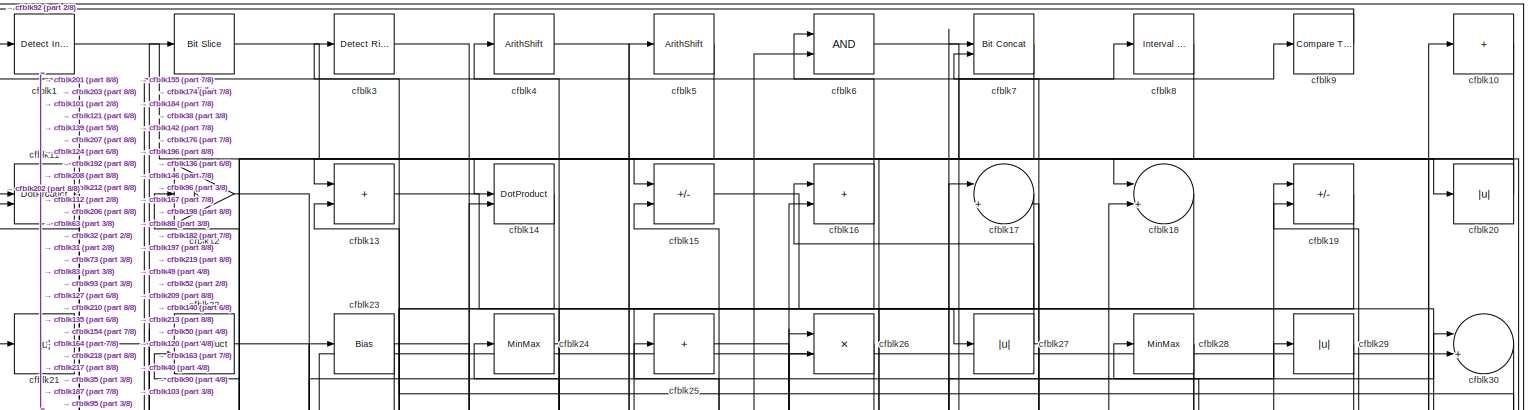
[diagram: root canvas - part 1/8, full width, top band]
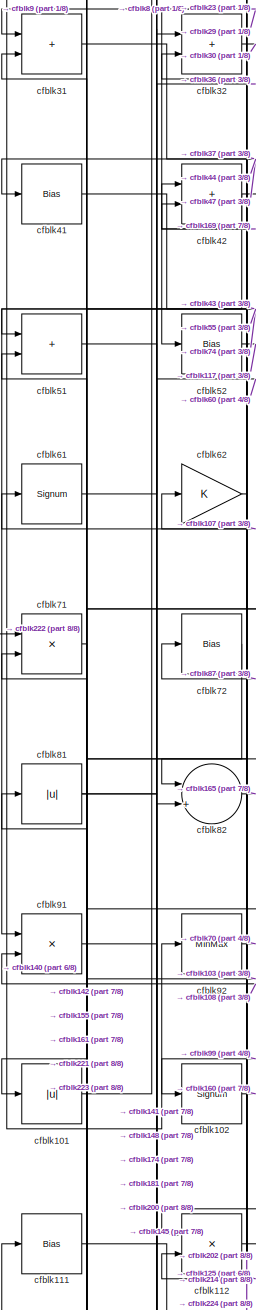
[diagram: root canvas - part 2/8, top left region]
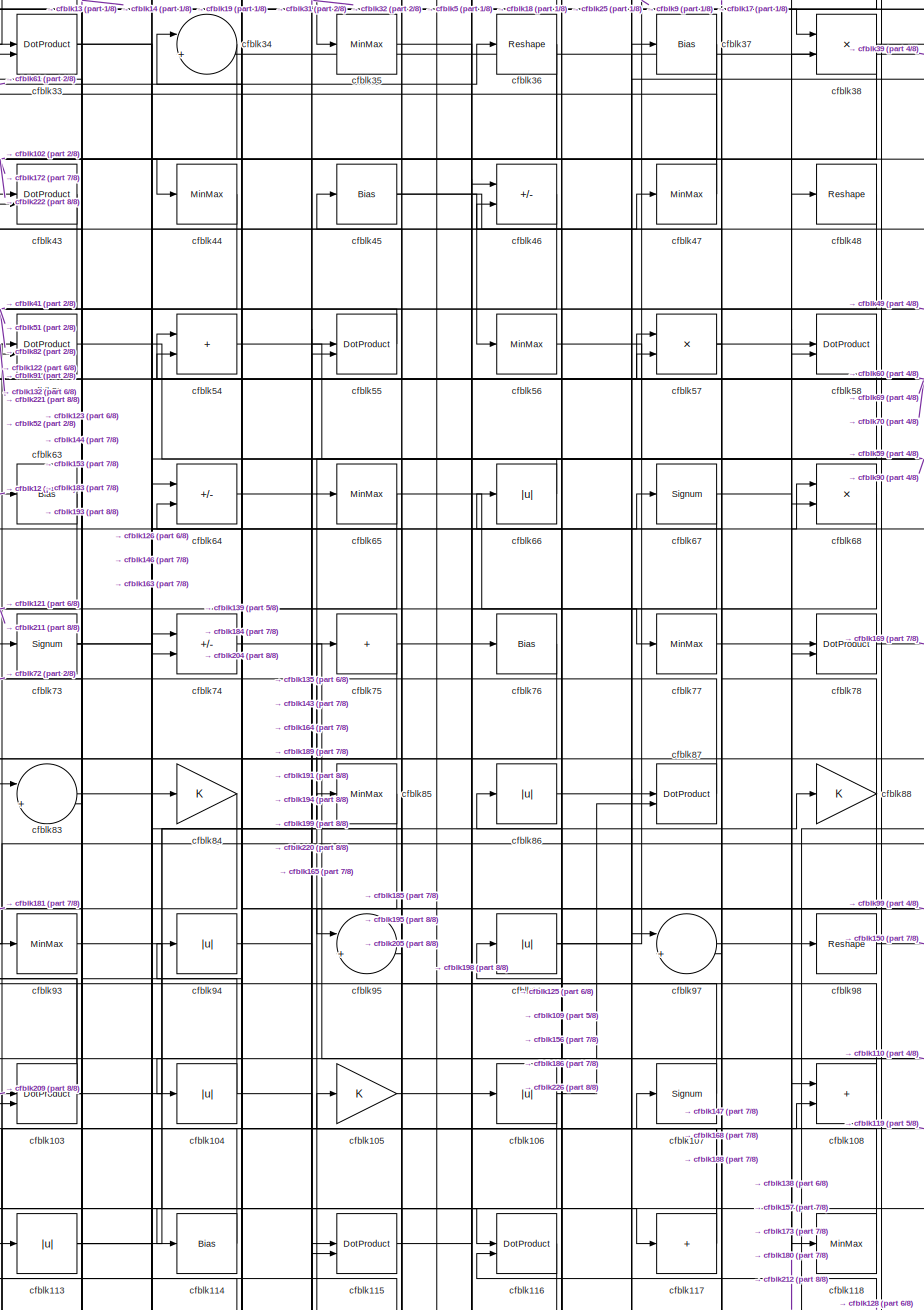
[diagram: root canvas - part 3/8, top center region]
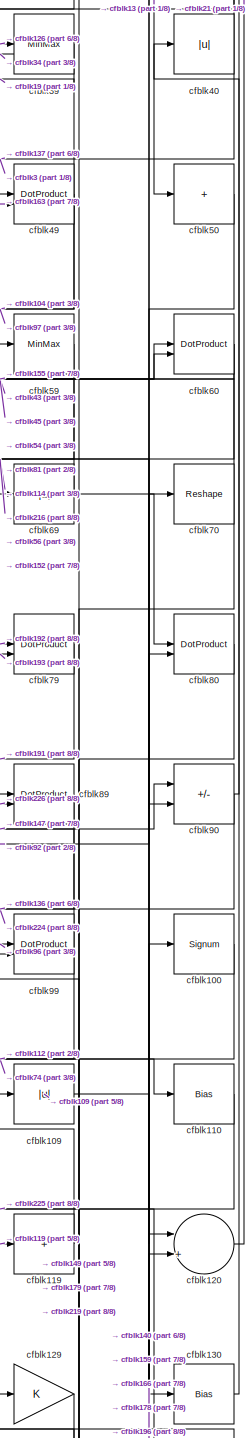
[diagram: root canvas - part 4/8, middle right region]
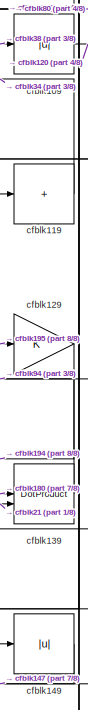
[diagram: root canvas - part 5/8, middle right region]
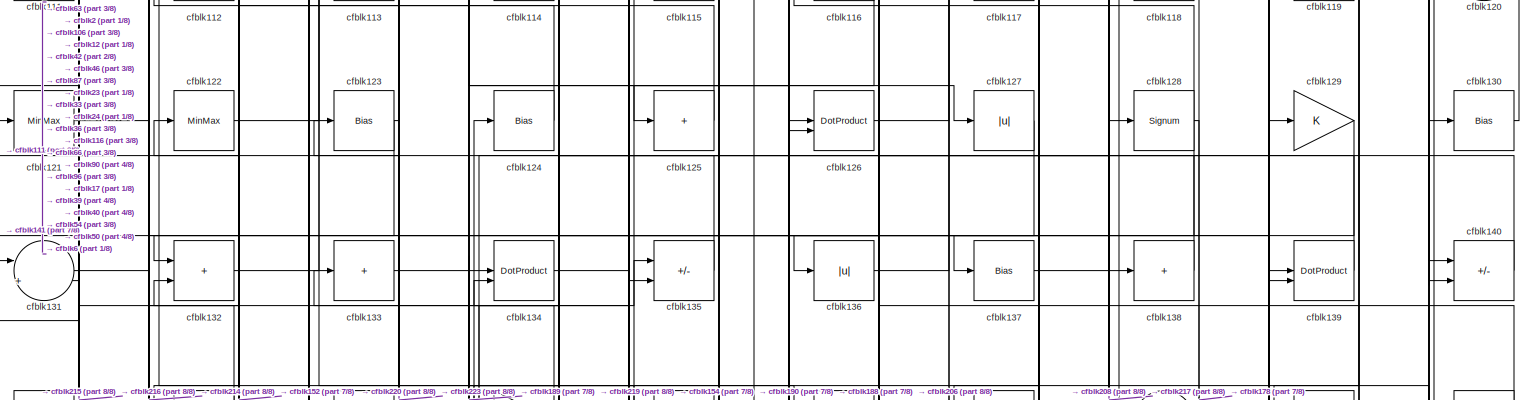
[diagram: root canvas - part 6/8, full width, middle band]
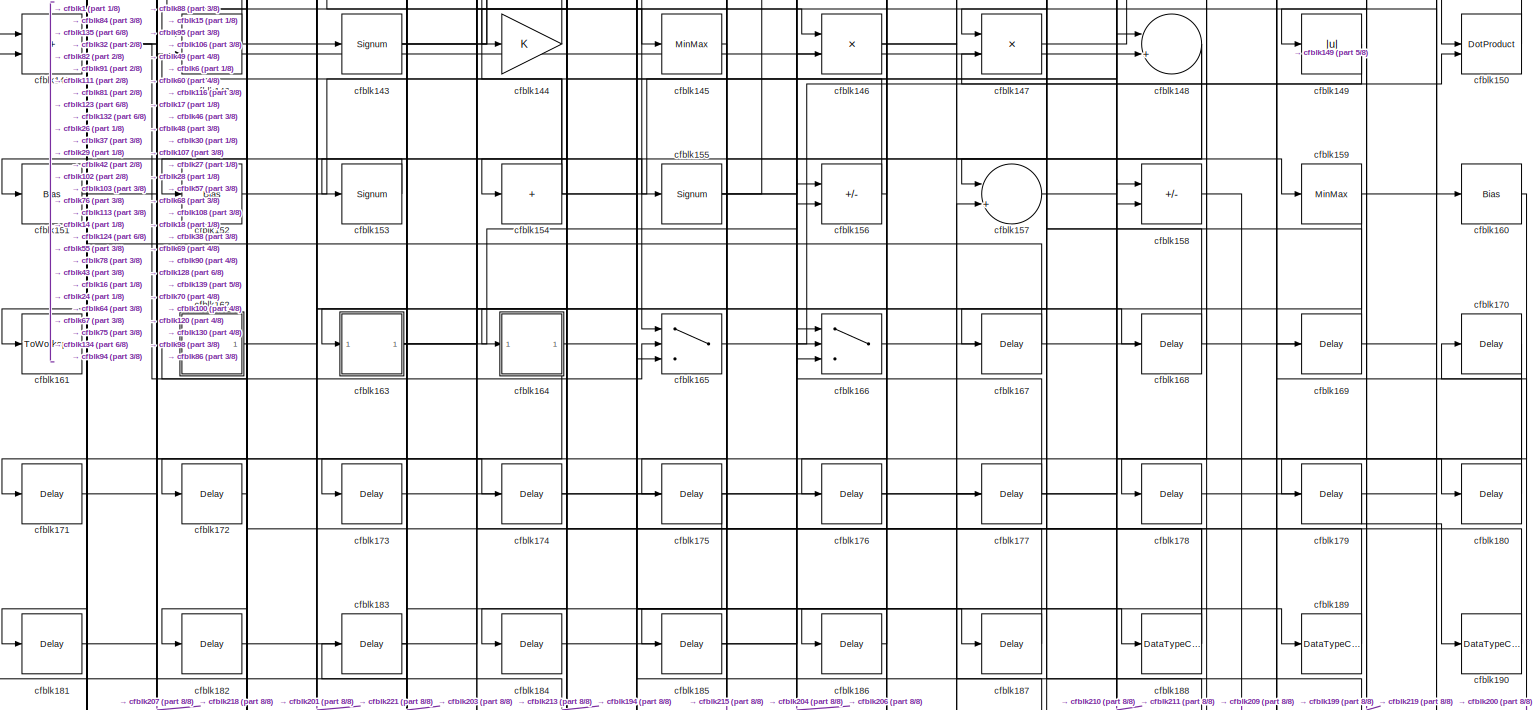
[diagram: root canvas - part 7/8, full width, bottom band]
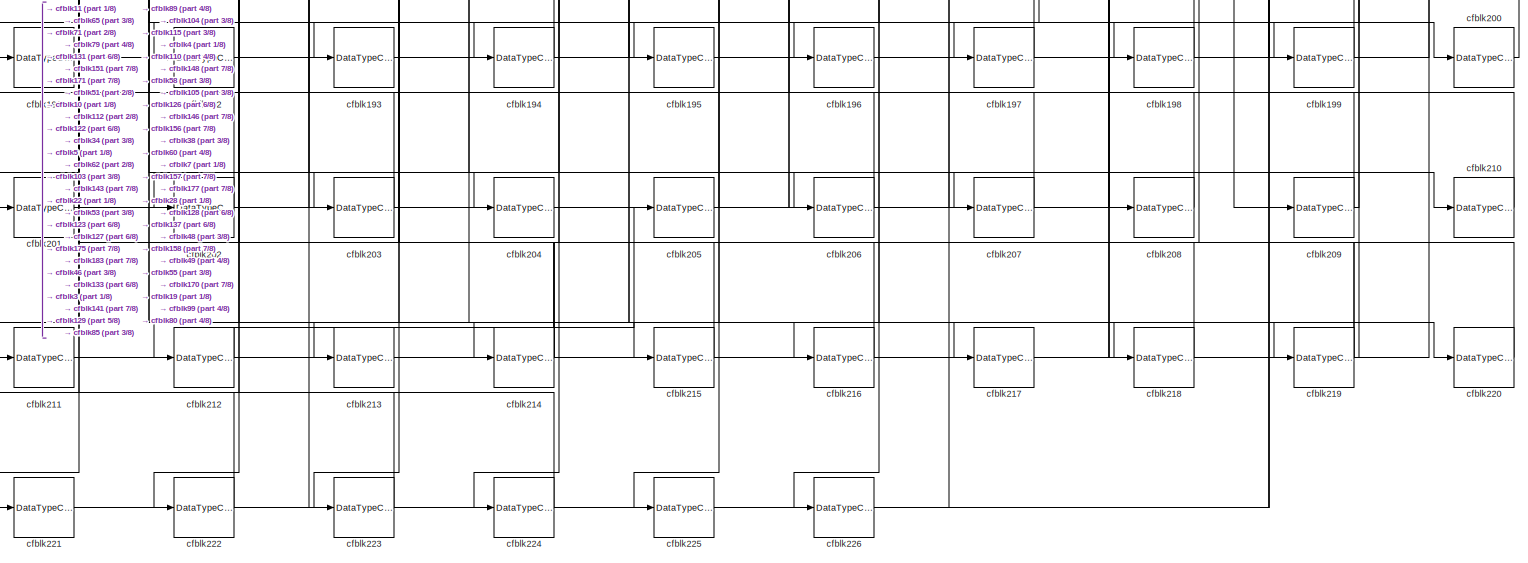
[diagram: root canvas - part 8/8, full width, bottom band]
MODEL slx_5f5b3e273747
KIND model
CONFIG AbsTol = auto
CONFIG EnableMultiTasking = off
CONFIG FixedStep = auto
CONFIG MaxStep = auto
CONFIG MinStep = auto
CONFIG RelTol = 1e-3
CONFIG SampleTimeConstraint = Unconstrained
CONFIG SolverName = VariableStepAuto
CONFIG StartTime = 0.0
CONFIG StopTime = 10.0
BLOCK [Reference] cfblk1  REF=simulink/Logic and Bit
Operations/Detect
Increase
  LibrarySourceBlock = hdlsllib/Logic and Bit\nOperations/Detect\nIncrease
  SourceBlock = simulink/Logic and Bit\nOperations/Detect\nIncrease
  SourceType = Detect Increase
BLOCK [Sum] cfblk10
  IconShape = rectangular
  Inputs = +
BLOCK [Signum] cfblk100
BLOCK [Abs] cfblk101
  SaturateOnIntegerOverflow = off
BLOCK [Signum] cfblk102
BLOCK [DotProduct] cfblk103
  OutDataTypeStr = Inherit: Inherit via internal rule
BLOCK [Abs] cfblk104
  SaturateOnIntegerOverflow = off
BLOCK [Gain] cfblk105
BLOCK [Abs] cfblk106
  SaturateOnIntegerOverflow = off
BLOCK [Signum] cfblk107
BLOCK [Sum] cfblk108
  IconShape = rectangular
BLOCK [Abs] cfblk109
  SaturateOnIntegerOverflow = off
BLOCK [DotProduct] cfblk11
  OutDataTypeStr = Inherit: Inherit via internal rule
BLOCK [Bias] cfblk110
  Bias = 0.0
  SaturateOnIntegerOverflow = off
BLOCK [Bias] cfblk111
  Bias = 0.0
  SaturateOnIntegerOverflow = off
BLOCK [Product] cfblk112
  Inputs = */
  RndMeth = Zero
  SaturateOnIntegerOverflow = on
BLOCK [Abs] cfblk113
  SaturateOnIntegerOverflow = off
BLOCK [Bias] cfblk114
  Bias = 0.0
  SaturateOnIntegerOverflow = off
BLOCK [DotProduct] cfblk115
  OutDataTypeStr = Inherit: Inherit via internal rule
BLOCK [DotProduct] cfblk116
  OutDataTypeStr = Inherit: Inherit via internal rule
BLOCK [Sum] cfblk117
  IconShape = rectangular
  Inputs = +
BLOCK [MinMax] cfblk118
BLOCK [Sum] cfblk119
  IconShape = rectangular
  Inputs = +
BLOCK [Gain] cfblk12
BLOCK [Sum] cfblk120
  Inputs = |++
BLOCK [MinMax] cfblk121
BLOCK [MinMax] cfblk122
BLOCK [Bias] cfblk123
  Bias = 0.0
  SaturateOnIntegerOverflow = off
BLOCK [Bias] cfblk124
  Bias = 0.0
  SaturateOnIntegerOverflow = off
BLOCK [Sum] cfblk125
  IconShape = rectangular
  Inputs = +
BLOCK [DotProduct] cfblk126
  OutDataTypeStr = Inherit: Inherit via internal rule
BLOCK [Abs] cfblk127
  SaturateOnIntegerOverflow = off
BLOCK [Signum] cfblk128
BLOCK [Gain] cfblk129
BLOCK [Sum] cfblk13
  IconShape = rectangular
BLOCK [Bias] cfblk130
  Bias = 0.0
  SaturateOnIntegerOverflow = off
BLOCK [Sum] cfblk131
  Inputs = |++
BLOCK [Sum] cfblk132
  IconShape = rectangular
BLOCK [Sum] cfblk133
  IconShape = rectangular
  Inputs = +
BLOCK [DotProduct] cfblk134
  OutDataTypeStr = Inherit: Inherit via internal rule
BLOCK [Sum] cfblk135
  IconShape = rectangular
  Inputs = +-
BLOCK [Abs] cfblk136
  SaturateOnIntegerOverflow = off
BLOCK [Bias] cfblk137
  Bias = 0.0
  SaturateOnIntegerOverflow = off
BLOCK [Sum] cfblk138
  IconShape = rectangular
  Inputs = +
BLOCK [DotProduct] cfblk139
  OutDataTypeStr = Inherit: Inherit via internal rule
BLOCK [DotProduct] cfblk14
  OutDataTypeStr = Inherit: Inherit via internal rule
BLOCK [Sum] cfblk140
  IconShape = rectangular
  Inputs = +-
BLOCK [Sum] cfblk141
  IconShape = rectangular
BLOCK [Sum] cfblk142
  IconShape = rectangular
BLOCK [Signum] cfblk143
BLOCK [Gain] cfblk144
BLOCK [MinMax] cfblk145
BLOCK [Product] cfblk146
  Inputs = */
  RndMeth = Zero
  SaturateOnIntegerOverflow = on
BLOCK [Product] cfblk147
  Inputs = */
  RndMeth = Zero
  SaturateOnIntegerOverflow = on
BLOCK [Sum] cfblk148
  Inputs = |++
BLOCK [Abs] cfblk149
  SaturateOnIntegerOverflow = off
BLOCK [Sum] cfblk15
  IconShape = rectangular
  Inputs = +-
BLOCK [DotProduct] cfblk150
  OutDataTypeStr = Inherit: Inherit via internal rule
BLOCK [Bias] cfblk151
  Bias = 0.0
  SaturateOnIntegerOverflow = off
BLOCK [Bias] cfblk152
  Bias = 0.0
  SaturateOnIntegerOverflow = off
BLOCK [Signum] cfblk153
BLOCK [Sum] cfblk154
  IconShape = rectangular
  Inputs = +
BLOCK [Signum] cfblk155
BLOCK [Sum] cfblk156
  IconShape = rectangular
  Inputs = +-
BLOCK [Sum] cfblk157
  Inputs = |++
BLOCK [Sum] cfblk158
  IconShape = rectangular
  Inputs = +-
BLOCK [MinMax] cfblk159
BLOCK [Sum] cfblk16
  IconShape = rectangular
BLOCK [Bias] cfblk160
  Bias = 0.0
  SaturateOnIntegerOverflow = off
BLOCK [ToWorkspace] cfblk161
  MaxDataPoints = inf
  SampleTime = -1
  SaveFormat = Timeseries
  VariableName = simout
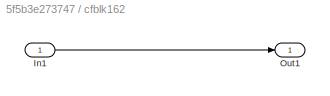
BLOCK [SubSystem] cfblk162
  LibrarySourceBlock = hdlsllib/Ports &\nSubsystems/Subsystem
BLOCK [Inport] cfblk162/In1
BLOCK [Outport] cfblk162/Out1
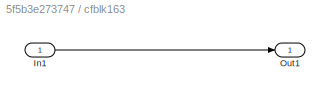
BLOCK [SubSystem] cfblk163
  LibrarySourceBlock = hdlsllib/Ports &\nSubsystems/Subsystem
BLOCK [Inport] cfblk163/In1
BLOCK [Outport] cfblk163/Out1
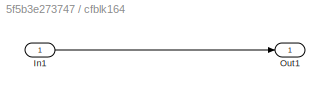
BLOCK [SubSystem] cfblk164
  LibrarySourceBlock = hdlsllib/Ports &\nSubsystems/Subsystem
BLOCK [Inport] cfblk164/In1
BLOCK [Outport] cfblk164/Out1
BLOCK [Switch] cfblk165
  InputSameDT = off
  SaturateOnIntegerOverflow = off
BLOCK [Switch] cfblk166
  InputSameDT = off
  SaturateOnIntegerOverflow = off
BLOCK [Delay] cfblk167
  InputPortMap = u0
  SampleTime = 1
BLOCK [Delay] cfblk168
  InputPortMap = u0
  SampleTime = 1
BLOCK [Delay] cfblk169
  InputPortMap = u0
  SampleTime = 1
BLOCK [Sum] cfblk17
  Inputs = |++
BLOCK [Delay] cfblk170
  InputPortMap = u0
  SampleTime = 1
BLOCK [Delay] cfblk171
  InputPortMap = u0
  SampleTime = 1
BLOCK [Delay] cfblk172
  InputPortMap = u0
  SampleTime = 1
BLOCK [Delay] cfblk173
  InputPortMap = u0
  SampleTime = 1
BLOCK [Delay] cfblk174
  InputPortMap = u0
  SampleTime = 1
BLOCK [Delay] cfblk175
  InputPortMap = u0
  SampleTime = 1
BLOCK [Delay] cfblk176
  InputPortMap = u0
  SampleTime = 1
BLOCK [Delay] cfblk177
  InputPortMap = u0
  SampleTime = 1
BLOCK [Delay] cfblk178
  InputPortMap = u0
  SampleTime = 1
BLOCK [Delay] cfblk179
  InputPortMap = u0
  SampleTime = 1
BLOCK [Sum] cfblk18
  Inputs = |++
BLOCK [Delay] cfblk180
  InputPortMap = u0
  SampleTime = 1
BLOCK [Delay] cfblk181
  InputPortMap = u0
  SampleTime = 1
BLOCK [Delay] cfblk182
  InputPortMap = u0
  SampleTime = 1
BLOCK [Delay] cfblk183
  InputPortMap = u0
  SampleTime = 1
BLOCK [Delay] cfblk184
  InputPortMap = u0
  SampleTime = 1
BLOCK [Delay] cfblk185
  InputPortMap = u0
  SampleTime = 1
BLOCK [Delay] cfblk186
  InputPortMap = u0
  SampleTime = 1
BLOCK [Delay] cfblk187
  InputPortMap = u0
  SampleTime = 1
BLOCK [DataTypeConversion] cfblk188
  RndMeth = Floor
  SaturateOnIntegerOverflow = off
BLOCK [DataTypeConversion] cfblk189
  OutDataTypeStr = uint8
  RndMeth = Floor
  SaturateOnIntegerOverflow = off
BLOCK [Sum] cfblk19
  IconShape = rectangular
  Inputs = +-
BLOCK [DataTypeConversion] cfblk190
  OutDataTypeStr = uint8
  RndMeth = Floor
  SaturateOnIntegerOverflow = off
BLOCK [DataTypeConversion] cfblk191
  OutDataTypeStr = uint8
  RndMeth = Floor
  SaturateOnIntegerOverflow = off
BLOCK [DataTypeConversion] cfblk192
  OutDataTypeStr = uint8
  RndMeth = Floor
  SaturateOnIntegerOverflow = off
BLOCK [DataTypeConversion] cfblk193
  OutDataTypeStr = uint8
  RndMeth = Floor
  SaturateOnIntegerOverflow = off
BLOCK [DataTypeConversion] cfblk194
  RndMeth = Floor
  SaturateOnIntegerOverflow = off
BLOCK [DataTypeConversion] cfblk195
  OutDataTypeStr = uint8
  RndMeth = Floor
  SaturateOnIntegerOverflow = off
BLOCK [DataTypeConversion] cfblk196
  OutDataTypeStr = uint8
  RndMeth = Floor
  SaturateOnIntegerOverflow = off
BLOCK [DataTypeConversion] cfblk197
  OutDataTypeStr = uint8
  RndMeth = Floor
  SaturateOnIntegerOverflow = off
BLOCK [DataTypeConversion] cfblk198
  OutDataTypeStr = uint8
  RndMeth = Floor
  SaturateOnIntegerOverflow = off
BLOCK [DataTypeConversion] cfblk199
  OutDataTypeStr = uint8
  RndMeth = Floor
  SaturateOnIntegerOverflow = off
BLOCK [Reference] cfblk2  REF=hdlsllib/Logic and Bit
Operations/Bit Slice
  SourceBlock = hdlsllib/Logic and Bit\nOperations/Bit Slice
  SourceType = Bit Slice
BLOCK [Abs] cfblk20
  SaturateOnIntegerOverflow = off
BLOCK [DataTypeConversion] cfblk200
  OutDataTypeStr = uint8
  RndMeth = Floor
  SaturateOnIntegerOverflow = off
BLOCK [DataTypeConversion] cfblk201
  RndMeth = Floor
  SaturateOnIntegerOverflow = off
BLOCK [DataTypeConversion] cfblk202
  OutDataTypeStr = uint8
  RndMeth = Floor
  SaturateOnIntegerOverflow = off
BLOCK [DataTypeConversion] cfblk203
  OutDataTypeStr = uint8
  RndMeth = Floor
  SaturateOnIntegerOverflow = off
BLOCK [DataTypeConversion] cfblk204
  RndMeth = Floor
  SaturateOnIntegerOverflow = off
BLOCK [DataTypeConversion] cfblk205
  OutDataTypeStr = uint8
  RndMeth = Floor
  SaturateOnIntegerOverflow = off
BLOCK [DataTypeConversion] cfblk206
  RndMeth = Floor
  SaturateOnIntegerOverflow = off
BLOCK [DataTypeConversion] cfblk207
  OutDataTypeStr = uint8
  RndMeth = Floor
  SaturateOnIntegerOverflow = off
BLOCK [DataTypeConversion] cfblk208
  OutDataTypeStr = uint8
  RndMeth = Floor
  SaturateOnIntegerOverflow = off
BLOCK [DataTypeConversion] cfblk209
  RndMeth = Floor
  SaturateOnIntegerOverflow = off
BLOCK [Abs] cfblk21
  SaturateOnIntegerOverflow = off
BLOCK [DataTypeConversion] cfblk210
  OutDataTypeStr = uint8
  RndMeth = Floor
  SaturateOnIntegerOverflow = off
BLOCK [DataTypeConversion] cfblk211
  OutDataTypeStr = uint8
  RndMeth = Floor
  SaturateOnIntegerOverflow = off
BLOCK [DataTypeConversion] cfblk212
  RndMeth = Floor
  SaturateOnIntegerOverflow = off
BLOCK [DataTypeConversion] cfblk213
  OutDataTypeStr = uint8
  RndMeth = Floor
  SaturateOnIntegerOverflow = off
BLOCK [DataTypeConversion] cfblk214
  RndMeth = Floor
  SaturateOnIntegerOverflow = off
BLOCK [DataTypeConversion] cfblk215
  OutDataTypeStr = uint8
  RndMeth = Floor
  SaturateOnIntegerOverflow = off
BLOCK [DataTypeConversion] cfblk216
  OutDataTypeStr = uint8
  RndMeth = Floor
  SaturateOnIntegerOverflow = off
BLOCK [DataTypeConversion] cfblk217
  OutDataTypeStr = uint8
  RndMeth = Floor
  SaturateOnIntegerOverflow = off
BLOCK [DataTypeConversion] cfblk218
  OutDataTypeStr = uint8
  RndMeth = Floor
  SaturateOnIntegerOverflow = off
BLOCK [DataTypeConversion] cfblk219
  RndMeth = Floor
  SaturateOnIntegerOverflow = off
BLOCK [DotProduct] cfblk22
  OutDataTypeStr = Inherit: Inherit via internal rule
BLOCK [DataTypeConversion] cfblk220
  OutDataTypeStr = uint8
  RndMeth = Floor
  SaturateOnIntegerOverflow = off
BLOCK [DataTypeConversion] cfblk221
  RndMeth = Floor
  SaturateOnIntegerOverflow = off
BLOCK [DataTypeConversion] cfblk222
  OutDataTypeStr = uint8
  RndMeth = Floor
  SaturateOnIntegerOverflow = off
BLOCK [DataTypeConversion] cfblk223
  OutDataTypeStr = uint8
  RndMeth = Floor
  SaturateOnIntegerOverflow = off
BLOCK [DataTypeConversion] cfblk224
  RndMeth = Floor
  SaturateOnIntegerOverflow = off
BLOCK [DataTypeConversion] cfblk225
  OutDataTypeStr = uint8
  RndMeth = Floor
  SaturateOnIntegerOverflow = off
BLOCK [DataTypeConversion] cfblk226
  OutDataTypeStr = uint8
  RndMeth = Floor
  SaturateOnIntegerOverflow = off
BLOCK [Bias] cfblk23
  Bias = 0.0
  SaturateOnIntegerOverflow = off
BLOCK [MinMax] cfblk24
BLOCK [Sum] cfblk25
  IconShape = rectangular
  Inputs = +
BLOCK [Product] cfblk26
  Inputs = */
  RndMeth = Zero
  SaturateOnIntegerOverflow = on
BLOCK [Abs] cfblk27
  SaturateOnIntegerOverflow = off
BLOCK [MinMax] cfblk28
BLOCK [Abs] cfblk29
  SaturateOnIntegerOverflow = off
BLOCK [Reference] cfblk3  REF=hdlsllib/Logic and Bit
Operations/Detect Rise
Positive
  SourceBlock = hdlsllib/Logic and Bit\nOperations/Detect Rise\nPositive
  SourceType = Detect Rise Positive
BLOCK [Sum] cfblk30
  Inputs = |++
BLOCK [Sum] cfblk31
  IconShape = rectangular
BLOCK [Sum] cfblk32
  IconShape = rectangular
BLOCK [DotProduct] cfblk33
  OutDataTypeStr = Inherit: Inherit via internal rule
BLOCK [Sum] cfblk34
  Inputs = |++
BLOCK [MinMax] cfblk35
BLOCK [Reshape] cfblk36
BLOCK [Bias] cfblk37
  Bias = 0.0
  SaturateOnIntegerOverflow = off
BLOCK [Product] cfblk38
  Inputs = */
  RndMeth = Zero
  SaturateOnIntegerOverflow = on
BLOCK [MinMax] cfblk39
BLOCK [ArithShift] cfblk4
  BitShiftNumber = 8
  InputPortMap = u0
BLOCK [Abs] cfblk40
  SaturateOnIntegerOverflow = off
BLOCK [Bias] cfblk41
  Bias = 0.0
  SaturateOnIntegerOverflow = off
BLOCK [Sum] cfblk42
  IconShape = rectangular
BLOCK [DotProduct] cfblk43
  OutDataTypeStr = Inherit: Inherit via internal rule
BLOCK [MinMax] cfblk44
BLOCK [Bias] cfblk45
  Bias = 0.0
  SaturateOnIntegerOverflow = off
BLOCK [Sum] cfblk46
  IconShape = rectangular
  Inputs = +-
BLOCK [MinMax] cfblk47
BLOCK [Reshape] cfblk48
BLOCK [DotProduct] cfblk49
  OutDataTypeStr = Inherit: Inherit via internal rule
BLOCK [ArithShift] cfblk5
  BitShiftNumber = 8
  InputPortMap = u0
BLOCK [Sum] cfblk50
  IconShape = rectangular
  Inputs = +
BLOCK [Sum] cfblk51
  IconShape = rectangular
BLOCK [Bias] cfblk52
  Bias = 0.0
  SaturateOnIntegerOverflow = off
BLOCK [DotProduct] cfblk53
  OutDataTypeStr = Inherit: Inherit via internal rule
BLOCK [Sum] cfblk54
  IconShape = rectangular
BLOCK [DotProduct] cfblk55
  OutDataTypeStr = Inherit: Inherit via internal rule
BLOCK [MinMax] cfblk56
BLOCK [Product] cfblk57
  Inputs = */
  RndMeth = Zero
  SaturateOnIntegerOverflow = on
BLOCK [DotProduct] cfblk58
  OutDataTypeStr = Inherit: Inherit via internal rule
BLOCK [MinMax] cfblk59
BLOCK [Logic] cfblk6
  AllPortsSameDT = off
  OutDataTypeStr = boolean
BLOCK [DotProduct] cfblk60
  OutDataTypeStr = Inherit: Inherit via internal rule
BLOCK [Signum] cfblk61
BLOCK [Gain] cfblk62
BLOCK [Bias] cfblk63
  Bias = 0.0
  SaturateOnIntegerOverflow = off
BLOCK [Sum] cfblk64
  IconShape = rectangular
  Inputs = +-
BLOCK [MinMax] cfblk65
BLOCK [Abs] cfblk66
  SaturateOnIntegerOverflow = off
BLOCK [Signum] cfblk67
BLOCK [Product] cfblk68
  Inputs = */
  RndMeth = Zero
  SaturateOnIntegerOverflow = on
BLOCK [Abs] cfblk69
  SaturateOnIntegerOverflow = off
BLOCK [Reference] cfblk7  REF=hdlsllib/Logic and Bit
Operations/Bit Concat
  SourceBlock = hdlsllib/Logic and Bit\nOperations/Bit Concat
  SourceType = Bit Concat
BLOCK [Reshape] cfblk70
BLOCK [Product] cfblk71
  Inputs = */
  RndMeth = Zero
  SaturateOnIntegerOverflow = on
BLOCK [Bias] cfblk72
  Bias = 0.0
  SaturateOnIntegerOverflow = off
BLOCK [Signum] cfblk73
BLOCK [Sum] cfblk74
  IconShape = rectangular
  Inputs = +-
BLOCK [Sum] cfblk75
  IconShape = rectangular
  Inputs = +
BLOCK [Bias] cfblk76
  Bias = 0.0
  SaturateOnIntegerOverflow = off
BLOCK [MinMax] cfblk77
BLOCK [DotProduct] cfblk78
  OutDataTypeStr = Inherit: Inherit via internal rule
BLOCK [DotProduct] cfblk79
  OutDataTypeStr = Inherit: Inherit via internal rule
BLOCK [Reference] cfblk8  REF=hdlsllib/Logic and Bit
Operations/Interval Test
  SourceBlock = hdlsllib/Logic and Bit\nOperations/Interval Test
  SourceType = Interval Test
BLOCK [DotProduct] cfblk80
  OutDataTypeStr = Inherit: Inherit via internal rule
BLOCK [Abs] cfblk81
  SaturateOnIntegerOverflow = off
BLOCK [Sum] cfblk82
  Inputs = |++
BLOCK [Sum] cfblk83
  Inputs = |++
BLOCK [Gain] cfblk84
BLOCK [MinMax] cfblk85
BLOCK [Abs] cfblk86
  SaturateOnIntegerOverflow = off
BLOCK [DotProduct] cfblk87
  OutDataTypeStr = Inherit: Inherit via internal rule
BLOCK [Gain] cfblk88
BLOCK [DotProduct] cfblk89
  OutDataTypeStr = Inherit: Inherit via internal rule
BLOCK [Reference] cfblk9  REF=hdlsllib/Logic and Bit
Operations/Compare
To Zero
  SourceBlock = hdlsllib/Logic and Bit\nOperations/Compare\nTo Zero
  SourceType = Compare To Zero
BLOCK [Sum] cfblk90
  IconShape = rectangular
  Inputs = +-
BLOCK [Product] cfblk91
  Inputs = */
  RndMeth = Zero
  SaturateOnIntegerOverflow = on
BLOCK [MinMax] cfblk92
BLOCK [MinMax] cfblk93
BLOCK [Abs] cfblk94
  SaturateOnIntegerOverflow = off
BLOCK [Sum] cfblk95
  Inputs = |++
BLOCK [Abs] cfblk96
  SaturateOnIntegerOverflow = off
BLOCK [Sum] cfblk97
  Inputs = |++
BLOCK [Reshape] cfblk98
BLOCK [DotProduct] cfblk99
  OutDataTypeStr = Inherit: Inherit via internal rule
LINE cfblk100:1 -> cfblk119:1
LINE cfblk101:1 -> cfblk8:1
LINE cfblk102:1 -> cfblk160:1
NET cfblk103:1 -> cfblk31:2, cfblk32:2, cfblk5:1, cfblk73:1
NET cfblk104:1 -> cfblk220:1, cfblk83:2
LINE cfblk105:1 -> cfblk198:1
NET cfblk106:1 -> cfblk132:1, cfblk87:2
LINE cfblk107:1 -> cfblk61:1
LINE cfblk108:1 -> cfblk91:2
LINE cfblk109:1 -> cfblk120:1
LINE cfblk10:1 -> cfblk212:1
LINE cfblk110:1 -> cfblk225:1
LINE cfblk111:1 -> cfblk145:1
LINE cfblk112:1 -> cfblk23:1
NET cfblk113:1 -> cfblk146:1, cfblk75:1, cfblk88:1
LINE cfblk114:1 -> cfblk53:2
LINE cfblk115:1 -> cfblk68:1
LINE cfblk116:1 -> cfblk125:1
NET cfblk117:1 -> cfblk105:1, cfblk54:1
LINE cfblk118:1 -> cfblk95:2
LINE cfblk119:1 -> cfblk34:1
LINE cfblk11:1 -> cfblk201:1
LINE cfblk120:1 -> cfblk21:1
LINE cfblk121:1 -> cfblk2:1
LINE cfblk122:1 -> cfblk87:1
NET cfblk123:1 -> cfblk152:1, cfblk33:1
LINE cfblk124:1 -> cfblk12:1
LINE cfblk125:1 -> cfblk42:1
LINE cfblk126:1 -> cfblk39:1
LINE cfblk127:1 -> cfblk223:1
NET cfblk128:1 -> cfblk141:2, cfblk178:1, cfblk96:1
LINE cfblk129:1 -> cfblk194:1
LINE cfblk12:1 -> cfblk63:1
LINE cfblk130:1 -> cfblk40:1
LINE cfblk131:1 -> cfblk214:1
LINE cfblk132:1 -> cfblk46:1
LINE cfblk133:1 -> cfblk219:1
LINE cfblk134:1 -> cfblk188:1
LINE cfblk135:1 -> cfblk24:1
LINE cfblk136:1 -> cfblk17:1
LINE cfblk137:1 -> cfblk208:1
LINE cfblk138:1 -> cfblk66:1
LINE cfblk139:1 -> cfblk94:1
LINE cfblk13:1 -> cfblk50:1
LINE cfblk140:1 -> cfblk111:1
NET cfblk141:1 -> cfblk135:1, cfblk165:2, cfblk82:2
NET cfblk142:1 -> cfblk29:1, cfblk81:1
NET cfblk143:1 -> cfblk166:2, cfblk55:2, cfblk78:2
LINE cfblk144:1 -> cfblk43:2
LINE cfblk145:1 -> cfblk175:1
NET cfblk146:1 -> cfblk159:1, cfblk30:1
LINE cfblk147:1 -> cfblk90:1
NET cfblk148:1 -> cfblk213:1, cfblk215:1
LINE cfblk149:1 -> cfblk147:2
LINE cfblk14:1 -> cfblk93:1
LINE cfblk150:1 -> cfblk86:1
LINE cfblk151:1 -> cfblk218:1
LINE cfblk152:1 -> cfblk69:1
LINE cfblk153:1 -> cfblk151:1
NET cfblk154:1 -> cfblk124:1, cfblk132:2, cfblk187:1, cfblk18:2
NET cfblk155:1 -> cfblk26:2, cfblk60:1, cfblk6:2
NET cfblk156:1 -> cfblk46:2, cfblk64:2
LINE cfblk157:1 -> cfblk108:1
LINE cfblk158:1 -> cfblk209:1
NET cfblk159:1 -> cfblk100:1, cfblk166:3
LINE cfblk15:1 -> cfblk27:1
LINE cfblk160:1 -> cfblk171:1
LINE cfblk162/In1:1 -> cfblk162/Out1:1
LINE cfblk162:1 -> cfblk168:1
LINE cfblk163/In1:1 -> cfblk163/Out1:1
NET cfblk163:1 -> cfblk106:1, cfblk49:2, cfblk57:1
LINE cfblk164/In1:1 -> cfblk164/Out1:1
NET cfblk164:1 -> cfblk108:2, cfblk173:1
LINE cfblk165:1 -> cfblk150:2
LINE cfblk166:1 -> cfblk130:1
LINE cfblk167:1 -> cfblk1:1
LINE cfblk168:1 -> cfblk64:1
LINE cfblk169:1 -> cfblk42:2
NET cfblk16:1 -> cfblk154:1, cfblk6:1
LINE cfblk170:1 -> cfblk199:1
LINE cfblk171:1 -> cfblk207:1
LINE cfblk172:1 -> cfblk142:2
LINE cfblk173:1 -> cfblk38:2
LINE cfblk174:1 -> cfblk26:1
LINE cfblk175:1 -> cfblk203:1
LINE cfblk176:1 -> cfblk148:1
LINE cfblk177:1 -> cfblk166:1
LINE cfblk178:1 -> cfblk120:2
LINE cfblk179:1 -> cfblk190:1
LINE cfblk17:1 -> cfblk176:1
LINE cfblk180:1 -> cfblk139:1
LINE cfblk181:1 -> cfblk32:1
LINE cfblk182:1 -> cfblk14:2
LINE cfblk183:1 -> cfblk103:2
LINE cfblk184:1 -> cfblk16:2
LINE cfblk185:1 -> cfblk156:2
LINE cfblk186:1 -> cfblk116:2
LINE cfblk187:1 -> cfblk15:2
NET cfblk188:1 -> cfblk107:1, cfblk162:1
LINE cfblk189:1 -> cfblk134:1
LINE cfblk18:1 -> cfblk35:1
LINE cfblk190:1 -> cfblk134:2
LINE cfblk191:1 -> cfblk115:1
LINE cfblk192:1 -> cfblk79:1
LINE cfblk193:1 -> cfblk79:2
NET cfblk194:1 -> cfblk115:2, cfblk141:1
LINE cfblk195:1 -> cfblk129:1
LINE cfblk196:1 -> cfblk80:2
LINE cfblk197:1 -> cfblk7:1
LINE cfblk198:1 -> cfblk7:2
LINE cfblk199:1 -> cfblk55:1
LINE cfblk19:1 -> cfblk83:1
LINE cfblk1:1 -> cfblk15:1
LINE cfblk200:1 -> cfblk170:1
NET cfblk201:1 -> cfblk143:1, cfblk146:2
LINE cfblk202:1 -> cfblk11:1
LINE cfblk203:1 -> cfblk11:2
NET cfblk204:1 -> cfblk156:1, cfblk58:2
LINE cfblk205:1 -> cfblk85:1
NET cfblk206:1 -> cfblk126:1, cfblk157:2
LINE cfblk207:1 -> cfblk22:1
LINE cfblk208:1 -> cfblk22:2
NET cfblk209:1 -> cfblk103:1, cfblk19:2
LINE cfblk20:1 -> cfblk14:1
LINE cfblk210:1 -> cfblk158:1
LINE cfblk211:1 -> cfblk158:2
NET cfblk212:1 -> cfblk205:1, cfblk48:1
LINE cfblk213:1 -> cfblk10:1
NET cfblk214:1 -> cfblk112:2, cfblk122:1, cfblk123:1, cfblk51:2
LINE cfblk215:1 -> cfblk131:1
LINE cfblk216:1 -> cfblk131:2
LINE cfblk217:1 -> cfblk128:1
LINE cfblk218:1 -> cfblk4:1
NET cfblk219:1 -> cfblk183:1, cfblk28:1, cfblk99:2
LINE cfblk21:1 -> cfblk139:2
LINE cfblk220:1 -> cfblk133:1
NET cfblk221:1 -> cfblk177:1, cfblk53:1
LINE cfblk222:1 -> cfblk71:1
LINE cfblk223:1 -> cfblk71:2
NET cfblk224:1 -> cfblk49:1, cfblk62:1
LINE cfblk225:1 -> cfblk89:1
LINE cfblk226:1 -> cfblk89:2
LINE cfblk22:1 -> cfblk206:1
NET cfblk23:1 -> cfblk127:1, cfblk31:1
LINE cfblk24:1 -> cfblk164:1
LINE cfblk25:1 -> cfblk38:1
LINE cfblk26:1 -> cfblk142:1
NET cfblk27:1 -> cfblk167:1, cfblk16:1
NET cfblk28:1 -> cfblk182:1, cfblk197:1
LINE cfblk29:1 -> cfblk52:1
LINE cfblk2:1 -> cfblk20:1
LINE cfblk30:1 -> cfblk163:1
LINE cfblk31:1 -> cfblk44:1
LINE cfblk32:1 -> cfblk30:2
NET cfblk33:1 -> cfblk126:2, cfblk68:2
LINE cfblk34:1 -> cfblk222:1
LINE cfblk35:1 -> cfblk76:1
NET cfblk36:1 -> cfblk135:2, cfblk74:2
NET cfblk37:1 -> cfblk102:1, cfblk172:1
NET cfblk38:1 -> cfblk109:1, cfblk113:1, cfblk226:1
LINE cfblk39:1 -> cfblk34:2
LINE cfblk3:1 -> cfblk210:1
NET cfblk40:1 -> cfblk137:1, cfblk3:1
LINE cfblk41:1 -> cfblk74:1
NET cfblk42:1 -> cfblk155:1, cfblk161:1
LINE cfblk43:1 -> cfblk91:1
LINE cfblk44:1 -> cfblk82:1
NET cfblk45:1 -> cfblk47:1, cfblk56:1
LINE cfblk46:1 -> cfblk193:1
NET cfblk47:1 -> cfblk33:2, cfblk41:1
LINE cfblk48:1 -> cfblk186:1
NET cfblk49:1 -> cfblk104:1, cfblk19:1, cfblk97:2
LINE cfblk4:1 -> cfblk217:1
LINE cfblk50:1 -> cfblk140:2
LINE cfblk51:1 -> cfblk200:1
LINE cfblk52:1 -> cfblk117:1
LINE cfblk53:1 -> cfblk97:1
LINE cfblk54:1 -> cfblk138:1
LINE cfblk55:1 -> cfblk51:1
LINE cfblk56:1 -> cfblk90:2
NET cfblk57:1 -> cfblk157:1, cfblk180:1
LINE cfblk58:1 -> cfblk195:1
LINE cfblk59:1 -> cfblk114:1
LINE cfblk5:1 -> cfblk192:1
NET cfblk60:1 -> cfblk216:1, cfblk54:2
LINE cfblk61:1 -> cfblk36:1
LINE cfblk62:1 -> cfblk202:1
LINE cfblk63:1 -> cfblk121:1
LINE cfblk64:1 -> cfblk95:1
NET cfblk65:1 -> cfblk118:1, cfblk211:1
LINE cfblk66:1 -> cfblk65:1
NET cfblk67:1 -> cfblk184:1, cfblk98:1
LINE cfblk68:1 -> cfblk147:1
NET cfblk69:1 -> cfblk45:1, cfblk80:1
LINE cfblk6:1 -> cfblk140:1
NET cfblk70:1 -> cfblk179:1, cfblk43:1
LINE cfblk71:1 -> cfblk221:1
LINE cfblk72:1 -> cfblk101:1
NET cfblk73:1 -> cfblk13:2, cfblk57:2, cfblk67:1
LINE cfblk74:1 -> cfblk110:1
NET cfblk75:1 -> cfblk144:1, cfblk77:1
LINE cfblk76:1 -> cfblk153:1
LINE cfblk77:1 -> cfblk78:1
LINE cfblk78:1 -> cfblk169:1
LINE cfblk79:1 -> cfblk191:1
LINE cfblk7:1 -> cfblk196:1
LINE cfblk80:1 -> cfblk149:1
NET cfblk81:1 -> cfblk148:2, cfblk60:2
LINE cfblk82:1 -> cfblk165:3
LINE cfblk83:1 -> cfblk84:1
LINE cfblk84:1 -> cfblk181:1
LINE cfblk85:1 -> cfblk204:1
LINE cfblk86:1 -> cfblk37:1
LINE cfblk87:1 -> cfblk72:1
NET cfblk88:1 -> cfblk165:1, cfblk17:2
LINE cfblk89:1 -> cfblk224:1
LINE cfblk8:1 -> cfblk18:1
NET cfblk90:1 -> cfblk136:1, cfblk13:1
LINE cfblk91:1 -> cfblk174:1
LINE cfblk92:1 -> cfblk70:1
LINE cfblk93:1 -> cfblk116:1
LINE cfblk94:1 -> cfblk189:1
NET cfblk95:1 -> cfblk185:1, cfblk25:1
NET cfblk96:1 -> cfblk99:1, cfblk9:1
LINE cfblk97:1 -> cfblk58:1
LINE cfblk98:1 -> cfblk150:1
NET cfblk99:1 -> cfblk112:1, cfblk59:1
LINE cfblk9:1 -> cfblk92:1
note: NET lines group one-source signal fan-out (src -> all destinations, sorted); 1:1 wires keep LINE
